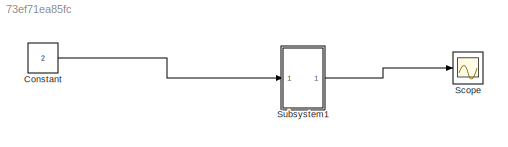
MODEL slx_73ef71ea85fc
KIND model
CONFIG AbsTol = auto
CONFIG FixedStep = 1e-8
CONFIG MaxStep = auto
CONFIG MinStep = auto
CONFIG RelTol = 1e-3
CONFIG SampleTimeConstraint = Unconstrained
CONFIG Solver = FixedStepAuto
CONFIG SolverMode = Auto
CONFIG SolverName = FixedStepAuto
CONFIG StartTime = 0.0
CONFIG StopTime = 1e-5
BLOCK [Constant] Constant
  SampleTime = -1
  Value = 2
BLOCK [Scope] Scope
  Ports = [1]
  ScopeSpecificationString = Simulink.scopes.TimeScopeBlockCfg('CurrentConfiguration', extmgr.ConfigurationSet(extmgr.Configuration('Core','General UI',true),extmgr.Configuration('Core','Source UI',true),extmgr.Configuration('Sources','WiredSimulink',true),extmgr.Configuration('Visuals','Time Domain',true,'SerializedDisplays',{struct('MinYLimReal','-0.01371','MaxYLimReal','0.01468','YLabelReal','','MinYLimMag','0.00000','MaxY...<+1359ch>
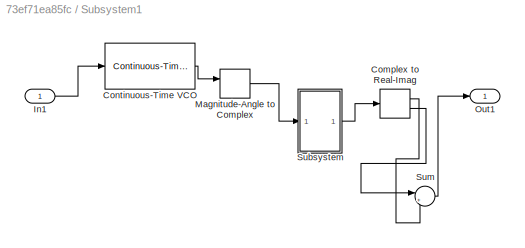
BLOCK [SubSystem] Subsystem1
  Ports = [1, 1]
  RequestExecContextInheritance = off
  Variant = off
BLOCK [ComplexToRealImag] Subsystem1/Complex to Real-Imag
  Ports = [1, 2]
BLOCK [Reference] Subsystem1/Continuous-Time VCO  REF=commsynccomp2/Continuous-Time
VCO
  Ports = [1, 1]
  SourceBlock = commsynccomp2/Continuous-Time\nVCO
  SourceType = Continuous-Time VCO
BLOCK [Inport] Subsystem1/In1 
  IconDisplay = Port number
BLOCK [MagnitudeAngleToComplex] Subsystem1/Magnitude-Angle to Complex
  Ports = [2, 1]
BLOCK [Outport] Subsystem1/Out1
  IconDisplay = Port number
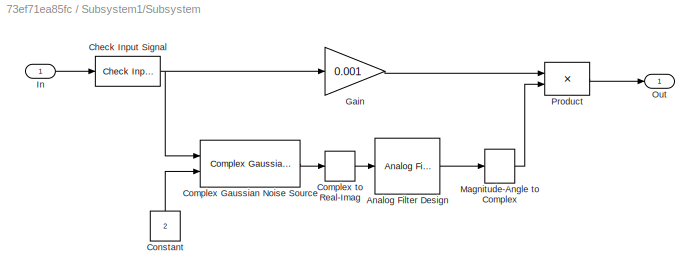
BLOCK [SubSystem] Subsystem1/Subsystem
  Ports = [1, 1]
  RequestExecContextInheritance = off
  Variant = off
BLOCK [Reference] Subsystem1/Subsystem/Analog Filter Design  REF=dsparch4/Analog
Filter Design
  Ports = [1, 1]
  SourceBlock = dsparch4/Analog\nFilter Design
  SourceType = Analog Filter Design
BLOCK [Reference] Subsystem1/Subsystem/Check Input Signal  REF=rfmathmodels1/Mixer/Check
Input Signal
  Ports = [1, 1]
  SourceBlock = rfmathmodels1/Mixer/Check\nInput Signal
BLOCK [Reference] Subsystem1/Subsystem/Complex Gaussian Noise Source  REF=rfprivate1/Complex Gaussian
Noise Source
  Ports = [2, 1]
  SourceBlock = rfprivate1/Complex Gaussian\nNoise Source
  SourceType = Complex Gaussian Noise Source
BLOCK [ComplexToRealImag] Subsystem1/Subsystem/Complex to Real-Imag
  Output = Real
  Ports = [1, 1]
BLOCK [Constant] Subsystem1/Subsystem/Constant
  SampleTime = Inf
  Value = 2
BLOCK [Gain] Subsystem1/Subsystem/Gain
  Gain = 0.001
BLOCK [Inport] Subsystem1/Subsystem/In
  IconDisplay = Port number
BLOCK [MagnitudeAngleToComplex] Subsystem1/Subsystem/Magnitude-Angle to Complex
  ConstantPart = 1
  Input = Angle
  Ports = [1, 1]
BLOCK [Outport] Subsystem1/Subsystem/Out
  IconDisplay = Port number
BLOCK [Product] Subsystem1/Subsystem/Product
  Ports = [2, 1]
  RndMeth = Floor
BLOCK [Sum] Subsystem1/Sum
  IconShape = round
  InputSameDT = off
  Inputs = |++
  OutDataTypeStr = Inherit: Inherit via internal rule
  Ports = [2, 1]
  SaturateOnIntegerOverflow = off
LINE Constant:1 -> Subsystem1:1
LINE Subsystem1/Complex to Real-Imag:1 -> Subsystem1/Sum:2
LINE Subsystem1/Complex to Real-Imag:2 -> Subsystem1/Sum:1
LINE Subsystem1/Continuous-Time VCO:1 -> Subsystem1/Magnitude-Angle to Complex:1
LINE Subsystem1/In1 :1 -> Subsystem1/Continuous-Time VCO:1
LINE Subsystem1/Magnitude-Angle to Complex:1 -> Subsystem1/Subsystem:1
LINE Subsystem1/Subsystem/Analog Filter Design:1 -> Subsystem1/Subsystem/Magnitude-Angle to Complex:1
NET Subsystem1/Subsystem/Check Input Signal:1 -> Subsystem1/Subsystem/Complex Gaussian Noise Source:1, Subsystem1/Subsystem/Gain:1
LINE Subsystem1/Subsystem/Complex Gaussian Noise Source:1 -> Subsystem1/Subsystem/Complex to Real-Imag:1
LINE Subsystem1/Subsystem/Complex to Real-Imag:1 -> Subsystem1/Subsystem/Analog Filter Design:1
LINE Subsystem1/Subsystem/Constant:1 -> Subsystem1/Subsystem/Complex Gaussian Noise Source:2
LINE Subsystem1/Subsystem/Gain:1 -> Subsystem1/Subsystem/Product:1
LINE Subsystem1/Subsystem/In:1 -> Subsystem1/Subsystem/Check Input Signal:1
LINE Subsystem1/Subsystem/Magnitude-Angle to Complex:1 -> Subsystem1/Subsystem/Product:2
LINE Subsystem1/Subsystem/Product:1 -> Subsystem1/Subsystem/Out:1
LINE Subsystem1/Subsystem:1 -> Subsystem1/Complex to Real-Imag:1
LINE Subsystem1/Sum:1 -> Subsystem1/Out1:1
LINE Subsystem1:1 -> Scope:1
note: NET lines group one-source signal fan-out (src -> all destinations, sorted); 1:1 wires keep LINE
